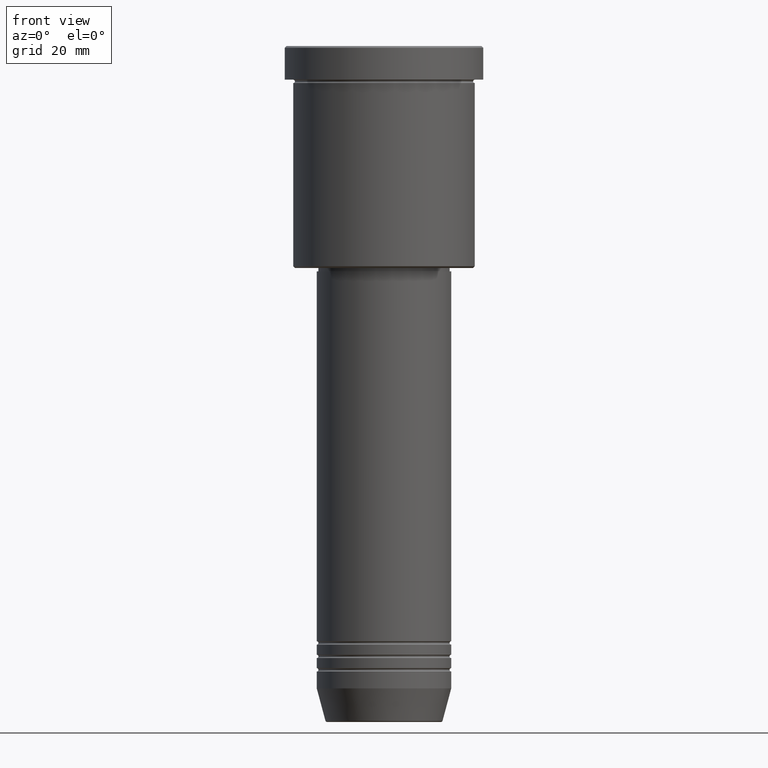
[diagram: clean part render]
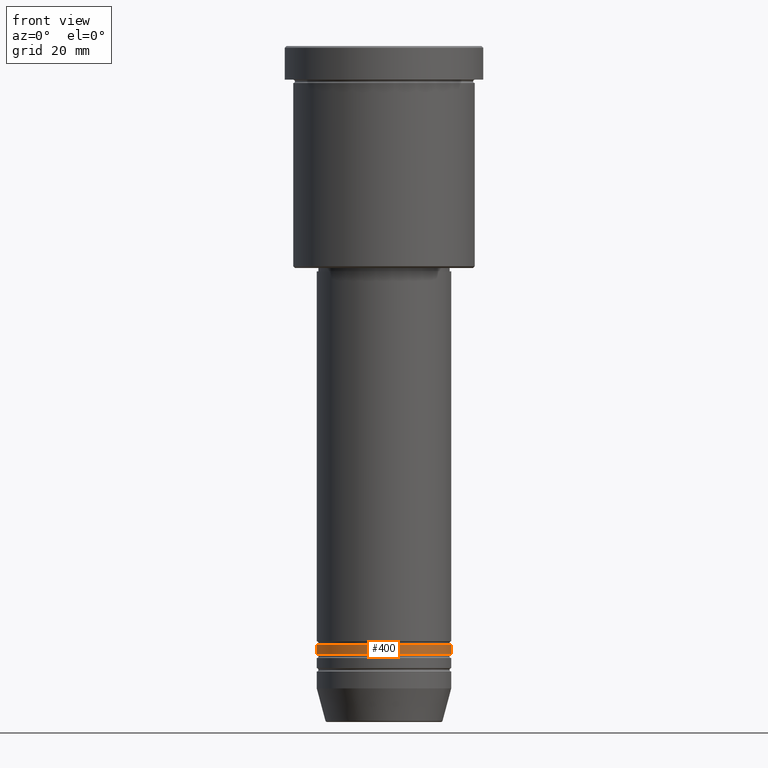
[diagram: same view with one face highlighted and labeled with its STEP entity id]
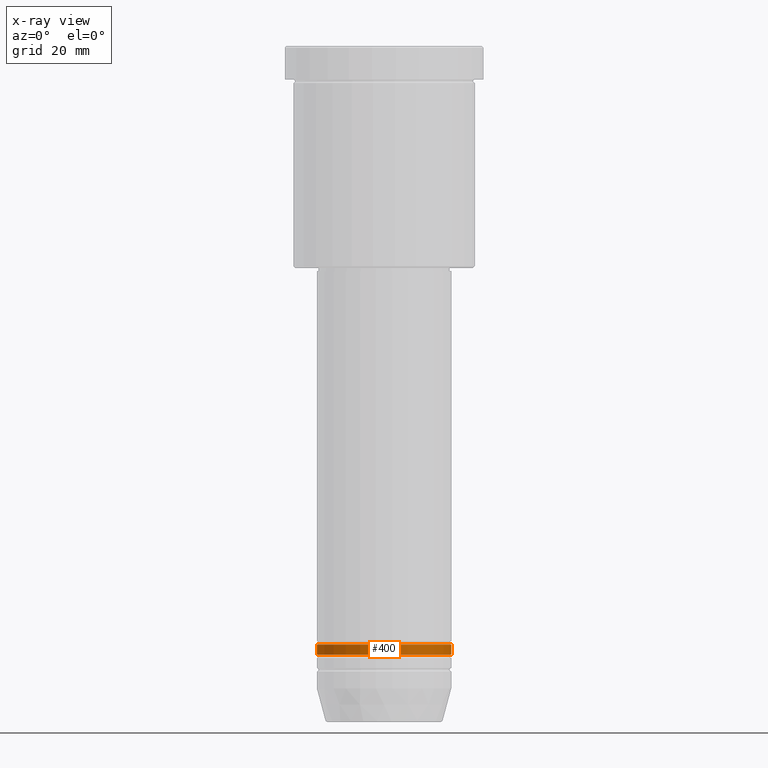
[diagram: x-ray of the same camera — body ghosted, the highlighted face saturated]
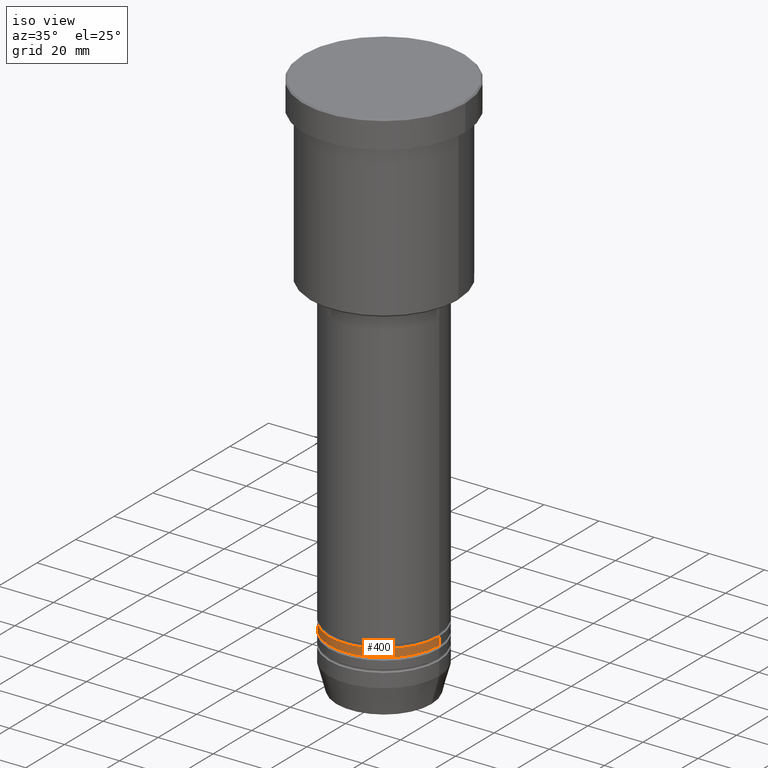
[diagram: same view with one face highlighted and labeled with its STEP entity id]
A machine part, front view. The second image highlights one B-rep face of the part: STEP entity #400.
The next image is the same camera in x-ray: the body ghosted, the highlighted face saturated — about 0% of this face is hidden behind the body in this view.
A second angle (iso view) of the same face is appended — the face is thin or edge-on in the first view.
In plain terms, the highlighted cylindrical surface (partial cylindrical patch) has radius 20 mm, axis along (-0, -0, 1).
Its self-contained STEP definition (entity closure, byte-faithful):
#75 = ORIENTED_EDGE ( 'NONE', *, *, #1024, .T. ) ;
#78 = EDGE_LOOP ( 'NONE', ( #852, #75, #722, #326 ) ) ;
#89 = VERTEX_POINT ( 'NONE', #1179 ) ;
#113 = CIRCLE ( 'NONE', #558, 20.00000000000000000 ) ;
#160 = VERTEX_POINT ( 'NONE', #394 ) ;
#211 = EDGE_CURVE ( 'NONE', #608, #89, #945, .T. ) ;
#243 = VECTOR ( 'NONE', #841, 1000.000000000000000 ) ;
#326 = ORIENTED_EDGE ( 'NONE', *, *, #454, .F. ) ;
#342 = DIRECTION ( 'NONE',  ( 1.000000000000000000, 0.000000000000000000, 0.000000000000000000 ) ) ;
#353 = VECTOR ( 'NONE', #801, 1000.000000000000000 ) ;
#394 = CARTESIAN_POINT ( 'NONE',  ( -20.00000000000000355, 2.449293598294706907E-15, -180.9999999999999432 ) ) ;
#400 = ADVANCED_FACE ( 'NONE', ( #790 ), #1158, .T. ) ;
#444 = DIRECTION ( 'NONE',  ( 1.000000000000000000, 0.000000000000000000, 0.000000000000000000 ) ) ;
#451 = CARTESIAN_POINT ( 'NONE',  ( 0.000000000000000000, 0.000000000000000000, -177.9999999999999147 ) ) ;
#454 = EDGE_CURVE ( 'NONE', #515, #89, #113, .T. ) ;
#455 = CARTESIAN_POINT ( 'NONE',  ( -20.00000000000000000, 2.449293598294706513E-15, -177.9999999999999147 ) ) ;
#515 = VERTEX_POINT ( 'NONE', #455 ) ;
#532 = DIRECTION ( 'NONE',  ( 1.000000000000000000, 0.000000000000000000, 0.000000000000000000 ) ) ;
#550 = EDGE_CURVE ( 'NONE', #160, #515, #552, .T. ) ;
#552 = LINE ( 'NONE', #919, #353 ) ;
#558 = AXIS2_PLACEMENT_3D ( 'NONE', #451, #1100, #444 ) ;
#563 = CARTESIAN_POINT ( 'NONE',  ( 20.00000000000000355, 0.000000000000000000, -180.9999999999999432 ) ) ;
#579 = AXIS2_PLACEMENT_3D ( 'NONE', #968, #683, #342 ) ;
#608 = VERTEX_POINT ( 'NONE', #563 ) ;
#669 = CARTESIAN_POINT ( 'NONE',  ( 20.00000000000000355, 0.000000000000000000, 0.000000000000000000 ) ) ;
#683 = DIRECTION ( 'NONE',  ( -0.000000000000000000, -0.000000000000000000, 1.000000000000000000 ) ) ;
#711 = DIRECTION ( 'NONE',  ( -0.000000000000000000, -0.000000000000000000, 1.000000000000000000 ) ) ;
#722 = ORIENTED_EDGE ( 'NONE', *, *, #211, .T. ) ;
#790 = FACE_OUTER_BOUND ( 'NONE', #78, .T. ) ;
#801 = DIRECTION ( 'NONE',  ( -0.000000000000000000, -0.000000000000000000, 1.000000000000000000 ) ) ;
#841 = DIRECTION ( 'NONE',  ( -0.000000000000000000, -0.000000000000000000, 1.000000000000000000 ) ) ;
#852 = ORIENTED_EDGE ( 'NONE', *, *, #550, .F. ) ;
#898 = CARTESIAN_POINT ( 'NONE',  ( 0.000000000000000000, 0.000000000000000000, -180.9999999999999432 ) ) ;
#919 = CARTESIAN_POINT ( 'NONE',  ( -20.00000000000000355, 2.449293598294706907E-15, 0.000000000000000000 ) ) ;
#945 = LINE ( 'NONE', #669, #243 ) ;
#968 = CARTESIAN_POINT ( 'NONE',  ( 0.000000000000000000, 0.000000000000000000, 0.000000000000000000 ) ) ;
#995 = CIRCLE ( 'NONE', #1132, 20.00000000000000355 ) ;
#1024 = EDGE_CURVE ( 'NONE', #160, #608, #995, .T. ) ;
#1100 = DIRECTION ( 'NONE',  ( -0.000000000000000000, -0.000000000000000000, 1.000000000000000000 ) ) ;
#1132 = AXIS2_PLACEMENT_3D ( 'NONE', #898, #711, #532 ) ;
#1158 = CYLINDRICAL_SURFACE ( 'NONE', #579, 20.00000000000000355 ) ;
#1179 = CARTESIAN_POINT ( 'NONE',  ( 20.00000000000000000, 0.000000000000000000, -177.9999999999999147 ) ) ;